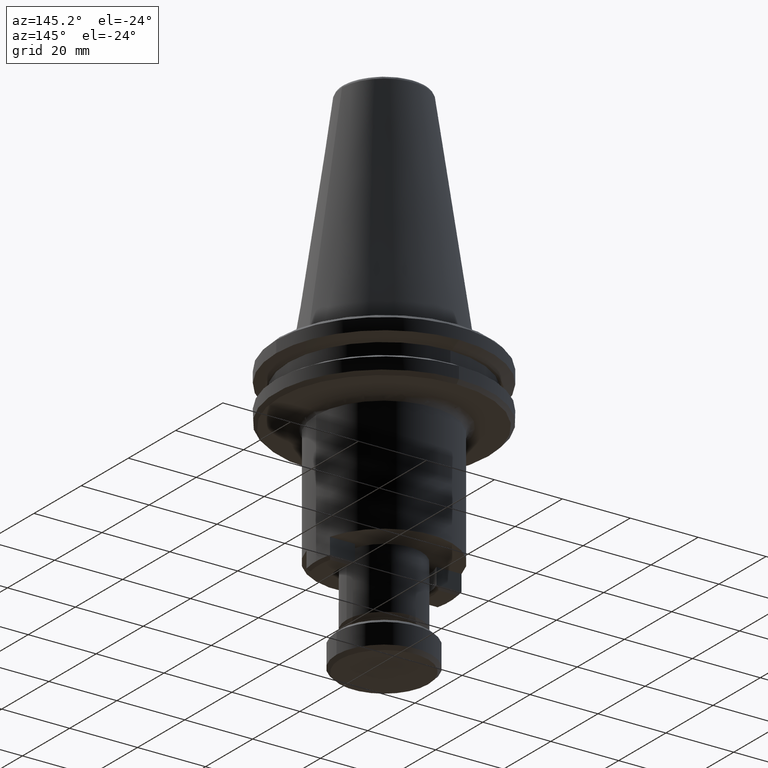
[diagram: clean part render]
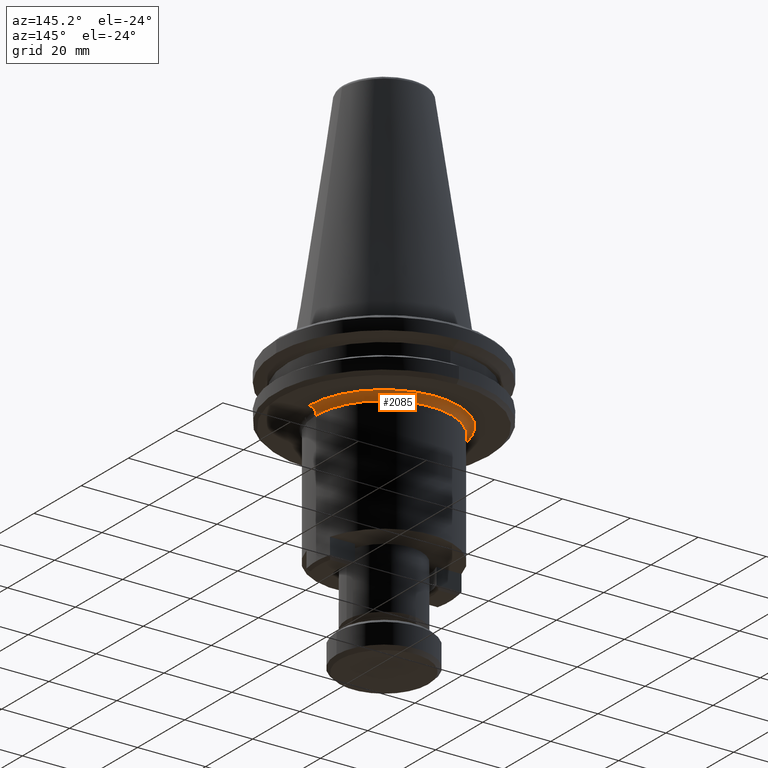
[diagram: same view with one face highlighted and labeled with its STEP entity id]
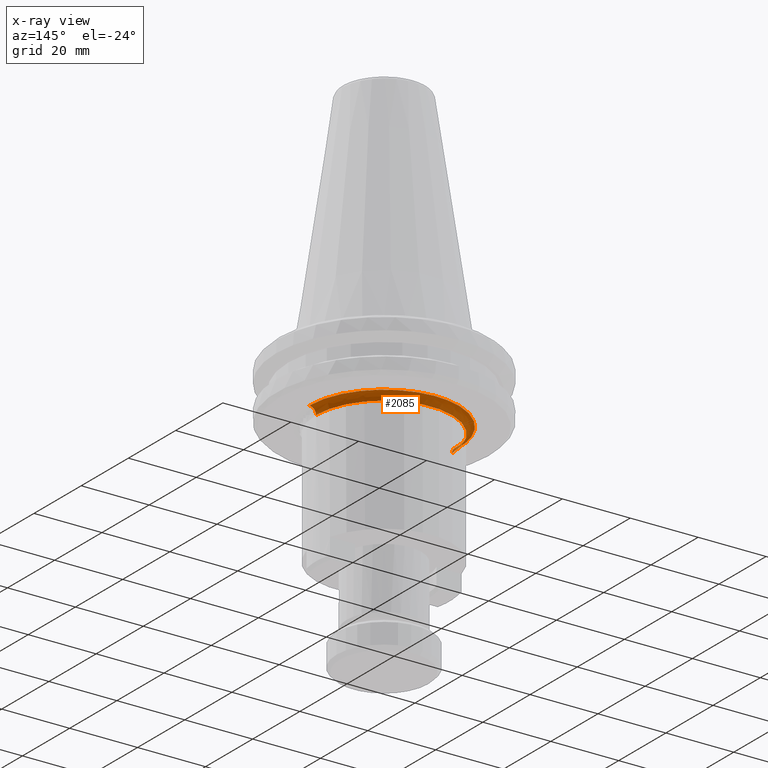
[diagram: x-ray of the same camera — body ghosted, the highlighted face saturated]
A machine part, auxiliary view. The second image highlights one B-rep face of the part: STEP entity #2085.
The next image is the same camera in x-ray: the body ghosted, the highlighted face saturated — about 1% of this face is hidden behind the body in this view.
In plain terms, the highlighted face is a freeform B-spline surface patch.
Its self-contained STEP definition (entity closure, byte-faithful):
#2 =( BOUNDED_SURFACE ( )  B_SPLINE_SURFACE ( 3, 3, ( 
 ( #556, #510, #545, #566 ),
 ( #65, #572, #575, #582 ),
 ( #2631, #1912, #2762, #2480 ),
 ( #2739, #2653, #1424, #50 ) ),
 .UNSPECIFIED., .F., .F., .T. ) 
 B_SPLINE_SURFACE_WITH_KNOTS ( ( 4, 4 ),
 ( 4, 4 ),
 ( 0.0000000000000000000, 1.000000000000000000 ),
 ( 0.0000000000000000000, 1.000000000000000000 ),
 .UNSPECIFIED. ) 
 GEOMETRIC_REPRESENTATION_ITEM ( )  RATIONAL_B_SPLINE_SURFACE ( (
 ( 1.000000000000000000, 0.3333333333333334300, 0.3333333333333334300, 1.000000000000000000),
 ( 0.8047378548504657800, 0.2682459516168220200, 0.2682459516168220200, 0.8047378548504657800),
 ( 0.8047378548504657800, 0.2682459516168220200, 0.2682459516168220200, 0.8047378548504657800),
 ( 1.000000000000000000, 0.3333333333333334300, 0.3333333333333334300, 1.000000000000000000) ) ) 
 REPRESENTATION_ITEM ( '' )  SURFACE ( )  );
#50 = CARTESIAN_POINT ( 'NONE',  ( 51.31616413966015200, 86.06069101126571800, 68.16780560809130000 ) ) ;
#65 = CARTESIAN_POINT ( 'NONE',  ( 93.31616413349897200, 86.06069101126570300, 67.33937848048344700 ) ) ;
#76 = VERTEX_POINT ( 'NONE', #1653 ) ;
#89 = CARTESIAN_POINT ( 'NONE',  ( 51.31616414212462700, 86.06069101126570300, 68.16780560809130000 ) ) ;
#91 = CARTESIAN_POINT ( 'NONE',  ( 51.31616414657511900, 87.40649685862514700, 68.16780560809130000 ) ) ;
#104 = CARTESIAN_POINT ( 'NONE',  ( 51.68727189556595600, 90.08454980961457200, 68.16780560809128500 ) ) ;
#106 = CARTESIAN_POINT ( 'NONE',  ( 51.69159573173385500, 90.10772767621188000, 68.16780560809128500 ) ) ;
#112 = CARTESIAN_POINT ( 'NONE',  ( 51.69984261716994900, 90.15154897970171500, 68.16780560809128500 ) ) ;
#114 = CARTESIAN_POINT ( 'NONE',  ( 51.71231014151391000, 90.21725272206296600, 68.16780560809131400 ) ) ;
#115 = CARTESIAN_POINT ( 'NONE',  ( 51.74208140497788800, 90.37036396412408100, 68.16780560809128500 ) ) ;
#119 = CARTESIAN_POINT ( 'NONE',  ( 51.80434542521873500, 90.67579648778659900, 68.16780560809131400 ) ) ;
#124 = CARTESIAN_POINT ( 'NONE',  ( 51.93975943895157600, 91.28350169327175900, 68.16780560809131400 ) ) ;
#128 = CARTESIAN_POINT ( 'NONE',  ( 52.25413135942182000, 92.48627273688362000, 68.16780560809128500 ) ) ;
#129 = CARTESIAN_POINT ( 'NONE',  ( 52.59823967926145400, 93.49555185879343400, 68.16780560809130000 ) ) ;
#136 = CARTESIAN_POINT ( 'NONE',  ( 52.87723289062778800, 94.20022603466543400, 68.16780560809130000 ) ) ;
#141 = CARTESIAN_POINT ( 'NONE',  ( 53.36895978111874000, 95.35357353258130800, 68.16780560809130000 ) ) ;
#144 = CARTESIAN_POINT ( 'NONE',  ( 53.93528613405676700, 96.51805419253121000, 68.16780560809128500 ) ) ;
#151 = CARTESIAN_POINT ( 'NONE',  ( 54.49552198995414900, 97.47719985239042700, 68.16780560809131400 ) ) ;
#158 = CARTESIAN_POINT ( 'NONE',  ( 54.95310551570952400, 98.17706878723585400, 68.16780560809130000 ) ) ;
#163 = CARTESIAN_POINT ( 'NONE',  ( 55.00665122053519700, 98.25785585544474500, 68.16780560809130000 ) ) ;
#170 = CARTESIAN_POINT ( 'NONE',  ( 55.11245983130264400, 98.41524697658442700, 68.16780560809130000 ) ) ;
#179 = CARTESIAN_POINT ( 'NONE',  ( 55.27259303942284400, 98.65017449624187400, 68.16780560809130000 ) ) ;
#185 = CARTESIAN_POINT ( 'NONE',  ( 56.46311980274534600, 100.2378681932929400, 68.16780560809131400 ) ) ;
#192 = CARTESIAN_POINT ( 'NONE',  ( 57.22295716062228600, 101.0802086595495400, 68.16780560809132800 ) ) ;
#200 = CARTESIAN_POINT ( 'NONE',  ( 58.83353056239219100, 102.6907032207309200, 68.16780560809130000 ) ) ;
#213 = CARTESIAN_POINT ( 'NONE',  ( 60.00661373740162900, 103.6437255204258600, 68.16780560809130000 ) ) ;
#217 = CARTESIAN_POINT ( 'NONE',  ( 61.35698306007191900, 104.5265214072624600, 68.16780560809130000 ) ) ;
#222 = CARTESIAN_POINT ( 'NONE',  ( 61.43342234715795100, 104.5757969668050000, 68.16780560809128500 ) ) ;
#223 = CARTESIAN_POINT ( 'NONE',  ( 61.59009989930123700, 104.6754393085393400, 68.16780560809130000 ) ) ;
#231 = CARTESIAN_POINT ( 'NONE',  ( 61.82592100300455900, 104.8233404335187400, 68.16780560809130000 ) ) ;
#240 = CARTESIAN_POINT ( 'NONE',  ( 65.30106237334439400, 106.5487386976323700, 68.16780560809130000 ) ) ;
#244 = CARTESIAN_POINT ( 'NONE',  ( 65.38415509633398400, 106.5810544297272000, 68.16780560809130000 ) ) ;
#252 = CARTESIAN_POINT ( 'NONE',  ( 65.50890506180792300, 106.6291386740570200, 68.16780560809132800 ) ) ;
#253 = CARTESIAN_POINT ( 'NONE',  ( 65.80076448150640500, 106.7386097674717000, 68.16780560809131400 ) ) ;
#272 = CARTESIAN_POINT ( 'NONE',  ( 69.35433952809638900, 107.7010319143557400, 68.16780560809128500 ) ) ;
#304 = CARTESIAN_POINT ( 'NONE',  ( 94.81910269472065500, 90.76528459086634400, 68.16780560809130000 ) ) ;
#342 = CARTESIAN_POINT ( 'NONE',  ( 51.43859144546383500, 88.74089257481938400, 68.16780560809130000 ) ) ;
#350 = CARTESIAN_POINT ( 'NONE',  ( 52.89516885277918600, 94.24513251287220300, 68.16780560809128500 ) ) ;
#352 = CARTESIAN_POINT ( 'NONE',  ( 55.65617923548633400, 99.19022457441145900, 68.16780560809130000 ) ) ;
#359 = CARTESIAN_POINT ( 'NONE',  ( 64.52698828369879900, 106.2424552545545900, 68.16780560809131400 ) ) ;
#376 = VERTEX_POINT ( 'NONE', #2444 ) ;
#410 = CARTESIAN_POINT ( 'NONE',  ( 95.31616413349898700, 86.06069101126570300, 66.16780560809130000 ) ) ;
#462 = CARTESIAN_POINT ( 'NONE',  ( 72.64352661405683900, 108.0607072013292400, 68.16780560809131400 ) ) ;
#469 = DIRECTION ( 'NONE',  ( -1.224646799147353200E-016, -1.000000000000000000, 0.0000000000000000000 ) ) ;
#510 = CARTESIAN_POINT ( 'NONE',  ( 93.31616413349898700, 126.0606910112657200, 66.16780560809128500 ) ) ;
#518 = CARTESIAN_POINT ( 'NONE',  ( 51.31616413349898700, 86.06069101126571800, 66.16780560809130000 ) ) ;
#531 = DIRECTION ( 'NONE',  ( -1.000000000000000000, 0.0000000000000000000, 0.0000000000000000000 ) ) ;
#545 = CARTESIAN_POINT ( 'NONE',  ( 53.31616413349900800, 126.0606910112657500, 66.16780560809128500 ) ) ;
#556 = CARTESIAN_POINT ( 'NONE',  ( 93.31616413349900100, 86.06069101126570300, 66.16780560809130000 ) ) ;
#566 = CARTESIAN_POINT ( 'NONE',  ( 53.31616413349897200, 86.06069101126571800, 66.16780560809130000 ) ) ;
#572 = CARTESIAN_POINT ( 'NONE',  ( 93.31616413349904300, 126.0606910112657000, 67.33937848048347500 ) ) ;
#575 = CARTESIAN_POINT ( 'NONE',  ( 53.31616413349903600, 126.0606910112657700, 67.33937848048347500 ) ) ;
#582 = CARTESIAN_POINT ( 'NONE',  ( 53.31616413349898000, 86.06069101126573200, 67.33937848048344700 ) ) ;
#591 = VERTEX_POINT ( 'NONE', #1512 ) ;
#593 = CARTESIAN_POINT ( 'NONE',  ( 74.66143917238331100, 108.0606585572046600, 68.16780560809131400 ) ) ;
#834 = CIRCLE ( 'NONE', #1420, 20.00000000000000400 ) ;
#899 = CARTESIAN_POINT ( 'NONE',  ( 52.98240095511911100, 94.46031667944396300, 68.16780560809131400 ) ) ;
#906 = CARTESIAN_POINT ( 'NONE',  ( 52.92990583274087200, 94.33128738912613200, 68.16780560809128500 ) ) ;
#920 = CARTESIAN_POINT ( 'NONE',  ( 53.10761714105196100, 94.75996385507785600, 68.16780560809131400 ) ) ;
#1045 = EDGE_CURVE ( 'NONE', #591, #76, #834, .T. ) ;
#1092 = ORIENTED_EDGE ( 'NONE', *, *, #1770, .T. ) ;
#1127 = B_SPLINE_CURVE_WITH_KNOTS ( 'NONE', 3,
 ( #2257, #2250, #2244, #2236, #2587, #2217, #2214, #2674, #2190, #2672, #304, #2661, #2485, #2154, #2151, #2577, #2137, #2133, #2120, #2111, #2082, #2068, #2063, #2055, #2352, #2039, #2564, #2035, #2030, #2026, #2022, #2010, #2001, #1998, #1992, #1990, #2343, #2560, #1784, #1269, #1764, #1981, #1942, #1938, #1929, #1925, #1913, #1904, #2557, #2340, #1849, #2512, #593, #462, #1825, #1823, #1714, #1692, #1670, #2540, #272, #1523, #1510, #2205, #2651, #253, #252, #244, #240, #1445, #359, #1332, #1258, #231, #223, #222, #217, #213, #200, #192, #185, #352, #179, #170, #163, #158, #151, #144, #141, #920, #899, #906, #350, #136, #129, #128, #124, #119, #115, #114, #112, #106, #104, #342, #91, #89 ),
 .UNSPECIFIED., .F., .F.,
 ( 4, 1, 1, 1, 1, 1, 2, 2, 1, 1, 1, 1, 2, 2, 1, 1, 1, 2, 2, 2, 1, 1, 1, 2, 2, 1, 1, 1, 1, 2, 2, 1, 1, 1, 1, 1, 2, 2, 2, 1, 1, 1, 1, 1, 2, 2, 1, 1, 1, 1, 2, 2, 1, 1, 1, 2, 2, 2, 1, 1, 1, 2, 2, 1, 1, 1, 1, 2, 2, 1, 1, 1, 1, 1, 2, 2, 4 ),
 ( 0.0000000000000000000, 0.03125000000002278700, 0.04687500000003418100, 0.05468750000003991900, 0.05859375000004279200, 0.06054687500004390900, 0.06152343750004409000, 0.06250000000004427000, 0.09375000000006300500, 0.1093750000000720800, 0.1171875000000762300, 0.1210937500000782200, 0.1230468750000788000, 0.1250000000000793800, 0.1562500000000859300, 0.1718750000000891800, 0.1796875000000912300, 0.1835937500000922300, 0.1875000000000932600, 0.2500000000001045800, 0.2812500000001100200, 0.2968750000001125800, 0.3046875000001139600, 0.3085937500001148500, 0.3125000000001156900, 0.3437500000001268400, 0.3593750000001324500, 0.3671875000001356100, 0.3710937500001371100, 0.3730468750001376700, 0.3750000000001382800, 0.4062500000001418900, 0.4218750000001439400, 0.4296875000001446100, 0.4335937500001449400, 0.4355468750001450500, 0.4365234375001447700, 0.4375000000001445000, 0.5000000000001487700, 0.5312500000001505500, 0.5468750000001514300, 0.5546875000001518800, 0.5585937500001521000, 0.5605468750001519900, 0.5615234375001518800, 0.5625000000001517700, 0.5937500000001422200, 0.6093750000001370000, 0.6171875000001344500, 0.6210937500001327800, 0.6230468750001321200, 0.6250000000001314500, 0.6562500000001177900, 0.6718750000001110200, 0.6796875000001076900, 0.6835937500001059200, 0.6875000000001040300, 0.7500000000000802700, 0.7812500000000682800, 0.7968750000000623900, 0.8046875000000594000, 0.8085937500000581800, 0.8125000000000568400, 0.8437500000000454100, 0.8593750000000395200, 0.8671875000000369700, 0.8710937500000355300, 0.8730468750000349700, 0.8750000000000344200, 0.9062500000000229800, 0.9218750000000169900, 0.9296875000000139900, 0.9335937500000127700, 0.9355468750000125500, 0.9365234375000121000, 0.9375000000000116600, 1.000000000000000000 ),
 .UNSPECIFIED. ) ;
#1206 = DIRECTION ( 'NONE',  ( 1.000000000000000000, 0.0000000000000000000, 0.0000000000000000000 ) ) ;
#1208 = DIRECTION ( 'NONE',  ( 0.0000000000000000000, -0.0000000000000000000, -1.000000000000000000 ) ) ;
#1215 = CARTESIAN_POINT ( 'NONE',  ( 73.31616413349898700, 86.06069101126570300, 66.16780560809130000 ) ) ;
#1258 = CARTESIAN_POINT ( 'NONE',  ( 62.38180367339781200, 105.1575063451160900, 68.16780560809130000 ) ) ;
#1264 = CARTESIAN_POINT ( 'NONE',  ( 51.31616414212462700, 86.06069101126570300, 68.16780560809130000 ) ) ;
#1269 = CARTESIAN_POINT ( 'NONE',  ( 81.58676051225676000, 106.4469493043391300, 68.16780560809131400 ) ) ;
#1288 = CIRCLE ( 'NONE', #2617, 1.999999999999994900 ) ;
#1332 = CARTESIAN_POINT ( 'NONE',  ( 63.51610272785963900, 105.7820913148923800, 68.16780560809131400 ) ) ;
#1407 = ORIENTED_EDGE ( 'NONE', *, *, #1045, .F. ) ;
#1420 = AXIS2_PLACEMENT_3D ( 'NONE', #1215, #1208, #1206 ) ;
#1424 = CARTESIAN_POINT ( 'NONE',  ( 51.31616413966018800, 130.0606909989433900, 68.16780560809130000 ) ) ;
#1445 = CARTESIAN_POINT ( 'NONE',  ( 65.26127379682203900, 106.5331322590479700, 68.16780560809130000 ) ) ;
#1499 = VERTEX_POINT ( 'NONE', #1264 ) ;
#1510 = CARTESIAN_POINT ( 'NONE',  ( 68.61157055361803700, 107.5636295627998000, 68.16780560809131400 ) ) ;
#1512 = CARTESIAN_POINT ( 'NONE',  ( 53.31616413349899400, 86.06069101126570300, 66.16780560809130000 ) ) ;
#1523 = CARTESIAN_POINT ( 'NONE',  ( 69.33489593568215500, 107.6974647024907500, 68.16780560809128500 ) ) ;
#1653 = CARTESIAN_POINT ( 'NONE',  ( 93.31616413349900100, 86.06069101126570300, 66.16780560809130000 ) ) ;
#1670 = CARTESIAN_POINT ( 'NONE',  ( 69.45777377544978000, 107.7197750471110100, 68.16780560809132800 ) ) ;
#1682 = DIRECTION ( 'NONE',  ( 1.000000000000000000, 0.0000000000000000000, 0.0000000000000000000 ) ) ;
#1692 = CARTESIAN_POINT ( 'NONE',  ( 69.60264493655851900, 107.7453038749810600, 68.16780560809131400 ) ) ;
#1714 = CARTESIAN_POINT ( 'NONE',  ( 69.89261036988448000, 107.7938501495896300, 68.16780560809130000 ) ) ;
#1721 = EDGE_CURVE ( 'NONE', #376, #1499, #1127, .T. ) ;
#1764 = CARTESIAN_POINT ( 'NONE',  ( 81.50060563598657400, 106.4816862842499600, 68.16780560809130000 ) ) ;
#1770 = EDGE_CURVE ( 'NONE', #591, #1499, #1288, .T. ) ;
#1784 = CARTESIAN_POINT ( 'NONE',  ( 81.71578980259931800, 106.3944541820368400, 68.16780560809130000 ) ) ;
#1823 = CARTESIAN_POINT ( 'NONE',  ( 70.47343368097013200, 107.8808971742804900, 68.16780560809130000 ) ) ;
#1825 = CARTESIAN_POINT ( 'NONE',  ( 71.63865008087665800, 108.0148091255573900, 68.16780560809130000 ) ) ;
#1828 = EDGE_LOOP ( 'NONE', ( #1407, #1092, #2775, #2547 ) ) ;
#1835 = AXIS2_PLACEMENT_3D ( 'NONE', #410, #2614, #1682 ) ;
#1849 = CARTESIAN_POINT ( 'NONE',  ( 77.34002019279142800, 107.6895837461057800, 68.16780560809130000 ) ) ;
#1893 = CIRCLE ( 'NONE', #1835, 1.999999999999988000 ) ;
#1904 = CARTESIAN_POINT ( 'NONE',  ( 77.47272584450854500, 107.6645449932581800, 68.16780560809131400 ) ) ;
#1912 = CARTESIAN_POINT ( 'NONE',  ( 94.14459125494570900, 127.7175452541590800, 68.16780560448216900 ) ) ;
#1913 = CARTESIAN_POINT ( 'NONE',  ( 77.62583708657743400, 107.6347737298813600, 68.16780560809128500 ) ) ;
#1925 = CARTESIAN_POINT ( 'NONE',  ( 77.93126961025866700, 107.5725097098142600, 68.16780560809130000 ) ) ;
#1929 = CARTESIAN_POINT ( 'NONE',  ( 78.53897481579505800, 107.4370956964258600, 68.16780560809130000 ) ) ;
#1938 = CARTESIAN_POINT ( 'NONE',  ( 79.74174585956325200, 107.1227237766325000, 68.16780560809131400 ) ) ;
#1942 = CARTESIAN_POINT ( 'NONE',  ( 80.75102498169964300, 106.7786154573526100, 68.16780560809130000 ) ) ;
#1981 = CARTESIAN_POINT ( 'NONE',  ( 81.45569915777591100, 106.4996222463731100, 68.16780560809128500 ) ) ;
#1990 = CARTESIAN_POINT ( 'NONE',  ( 83.77352731618373100, 105.4415690042808400, 68.16780560809130000 ) ) ;
#1992 = CARTESIAN_POINT ( 'NONE',  ( 84.73267297637723100, 104.8813331489044000, 68.16780560809132800 ) ) ;
#1998 = CARTESIAN_POINT ( 'NONE',  ( 85.43254191150963100, 104.4237496235165800, 68.16780560809130000 ) ) ;
#2001 = CARTESIAN_POINT ( 'NONE',  ( 85.51332897975281400, 104.3702039187329100, 68.16780560809130000 ) ) ;
#2010 = CARTESIAN_POINT ( 'NONE',  ( 85.67072010095870400, 104.2643953080481900, 68.16780560809130000 ) ) ;
#2022 = CARTESIAN_POINT ( 'NONE',  ( 85.90564762071549900, 104.1042621000519800, 68.16780560809130000 ) ) ;
#2026 = CARTESIAN_POINT ( 'NONE',  ( 86.44569769911733200, 103.7206759042774800, 68.16780560809130000 ) ) ;
#2030 = CARTESIAN_POINT ( 'NONE',  ( 87.49334131846467200, 102.9137353375944200, 68.16780560809130000 ) ) ;
#2035 = CARTESIAN_POINT ( 'NONE',  ( 88.33568178512302900, 102.1538979802078600, 68.16780560809128500 ) ) ;
#2039 = CARTESIAN_POINT ( 'NONE',  ( 90.89919864757504800, 99.37024140482662900, 68.16780560809131400 ) ) ;
#2054 = FACE_OUTER_BOUND ( 'NONE', #1828, .T. ) ;
#2055 = CARTESIAN_POINT ( 'NONE',  ( 91.83127009470665300, 97.94343279565100600, 68.16780560809134200 ) ) ;
#2063 = CARTESIAN_POINT ( 'NONE',  ( 91.93091243653019300, 97.78675524356002300, 68.16780560809128500 ) ) ;
#2068 = CARTESIAN_POINT ( 'NONE',  ( 92.07881356164381300, 97.55093413993464000, 68.16780560809130000 ) ) ;
#2082 = CARTESIAN_POINT ( 'NONE',  ( 92.41297947355619200, 96.99505146971986800, 68.16780560809130000 ) ) ;
#2085 = ADVANCED_FACE ( 'NONE', ( #2054 ), #2, .F. ) ;
#2107 = EDGE_CURVE ( 'NONE', #76, #376, #1893, .T. ) ;
#2111 = CARTESIAN_POINT ( 'NONE',  ( 93.03756444397069500, 95.86075241560092800, 68.16780560809131400 ) ) ;
#2120 = CARTESIAN_POINT ( 'NONE',  ( 93.49792838419409700, 94.84986686003155400, 68.16780560809130000 ) ) ;
#2133 = CARTESIAN_POINT ( 'NONE',  ( 93.78860538909157200, 94.11558134708803900, 68.16780560809128500 ) ) ;
#2137 = CARTESIAN_POINT ( 'NONE',  ( 93.80421182769868000, 94.07579277057318700, 68.16780560809131400 ) ) ;
#2151 = CARTESIAN_POINT ( 'NONE',  ( 93.88461180423986700, 93.86795008215419500, 68.16780560809130000 ) ) ;
#2154 = CARTESIAN_POINT ( 'NONE',  ( 93.99408289781811700, 93.57609066251636400, 68.16780560809131400 ) ) ;
#2190 = CARTESIAN_POINT ( 'NONE',  ( 94.95650404119042800, 90.02252105080241100, 68.16780560809130000 ) ) ;
#2205 = CARTESIAN_POINT ( 'NONE',  ( 67.57365367362798700, 107.3191229806928100, 68.16780560809131400 ) ) ;
#2214 = CARTESIAN_POINT ( 'NONE',  ( 94.97524474338082700, 89.91909994000312200, 68.16780560809130000 ) ) ;
#2217 = CARTESIAN_POINT ( 'NONE',  ( 95.00077035689277200, 89.77424615166660300, 68.16780560809130000 ) ) ;
#2236 = CARTESIAN_POINT ( 'NONE',  ( 95.13634902543928700, 88.90353648333236000, 68.16780560809130000 ) ) ;
#2244 = CARTESIAN_POINT ( 'NONE',  ( 95.27025388343400900, 87.73835842338036200, 68.16780560809130000 ) ) ;
#2250 = CARTESIAN_POINT ( 'NONE',  ( 95.31616412079988300, 86.73341616471819300, 68.16780560809132800 ) ) ;
#2257 = CARTESIAN_POINT ( 'NONE',  ( 95.31616412487333900, 86.06069101126570300, 68.16780560809130000 ) ) ;
#2340 = CARTESIAN_POINT ( 'NONE',  ( 77.36320079865265600, 107.6852594029757500, 68.16780560809128500 ) ) ;
#2343 = CARTESIAN_POINT ( 'NONE',  ( 82.60904665592859400, 106.0078953565571300, 68.16780560809130000 ) ) ;
#2352 = CARTESIAN_POINT ( 'NONE',  ( 91.78199453511668100, 98.01987208271718500, 68.16780560809131400 ) ) ;
#2444 = CARTESIAN_POINT ( 'NONE',  ( 95.31616412487333900, 86.06069101126570300, 68.16780560809130000 ) ) ;
#2480 = CARTESIAN_POINT ( 'NONE',  ( 52.48773701205229300, 86.06069101126573200, 68.16780560448216900 ) ) ;
#2485 = CARTESIAN_POINT ( 'NONE',  ( 94.20212317822392800, 92.98926715553049900, 68.16780560809131400 ) ) ;
#2512 = CARTESIAN_POINT ( 'NONE',  ( 75.99654101003406500, 107.9382312420414800, 68.16780560809131400 ) ) ;
#2540 = CARTESIAN_POINT ( 'NONE',  ( 69.39571003973620100, 107.7085650443311700, 68.16780560809130000 ) ) ;
#2547 = ORIENTED_EDGE ( 'NONE', *, *, #2107, .F. ) ;
#2557 = CARTESIAN_POINT ( 'NONE',  ( 77.40702210214439600, 107.6770125175646200, 68.16780560809130000 ) ) ;
#2560 = CARTESIAN_POINT ( 'NONE',  ( 82.01543697829359300, 106.2692379962795000, 68.16780560809128500 ) ) ;
#2564 = CARTESIAN_POINT ( 'NONE',  ( 89.94617634711113400, 100.5433245794142600, 68.16780560809128500 ) ) ;
#2577 = CARTESIAN_POINT ( 'NONE',  ( 93.83652755984015000, 93.99270004760146000, 68.16780560809131400 ) ) ;
#2587 = CARTESIAN_POINT ( 'NONE',  ( 95.04931086784166900, 89.48431186951995600, 68.16780560809131400 ) ) ;
#2614 = DIRECTION ( 'NONE',  ( 0.0000000000000000000, 1.000000000000000000, 0.0000000000000000000 ) ) ;
#2617 = AXIS2_PLACEMENT_3D ( 'NONE', #518, #469, #531 ) ;
#2631 = CARTESIAN_POINT ( 'NONE',  ( 94.14459125494566600, 86.06069101126570300, 68.16780560448216900 ) ) ;
#2651 = CARTESIAN_POINT ( 'NONE',  ( 66.38758798860772000, 106.9466500475485600, 68.16780560809128500 ) ) ;
#2653 = CARTESIAN_POINT ( 'NONE',  ( 95.31616412733782800, 130.0606909989433300, 68.16780560809130000 ) ) ;
#2661 = CARTESIAN_POINT ( 'NONE',  ( 94.57459611203259400, 91.80320147071809300, 68.16780560809130000 ) ) ;
#2672 = CARTESIAN_POINT ( 'NONE',  ( 94.95293783481646700, 90.04195920887917700, 68.16780560809130000 ) ) ;
#2674 = CARTESIAN_POINT ( 'NONE',  ( 94.96403618943908500, 89.98115584513227800, 68.16780560809130000 ) ) ;
#2739 = CARTESIAN_POINT ( 'NONE',  ( 95.31616412733781400, 86.06069101126570300, 68.16780560809130000 ) ) ;
#2762 = CARTESIAN_POINT ( 'NONE',  ( 52.48773701205235700, 127.7175452541591300, 68.16780560448216900 ) ) ;
#2775 = ORIENTED_EDGE ( 'NONE', *, *, #1721, .F. ) ;